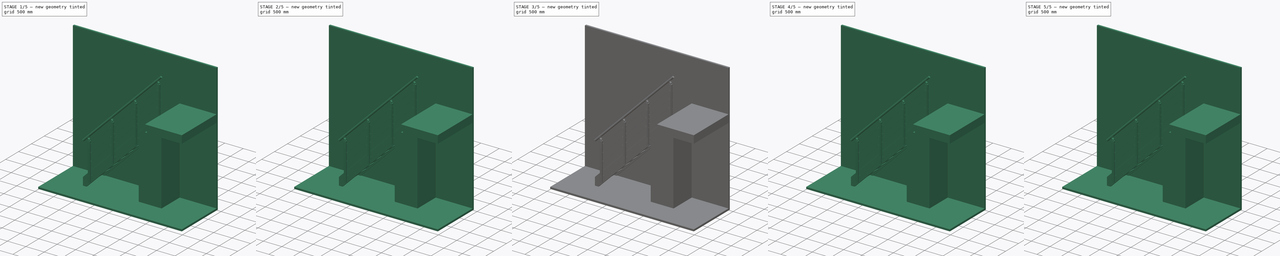
[diagram: build sequence overview — one tinted view per stage of 5, left to right]
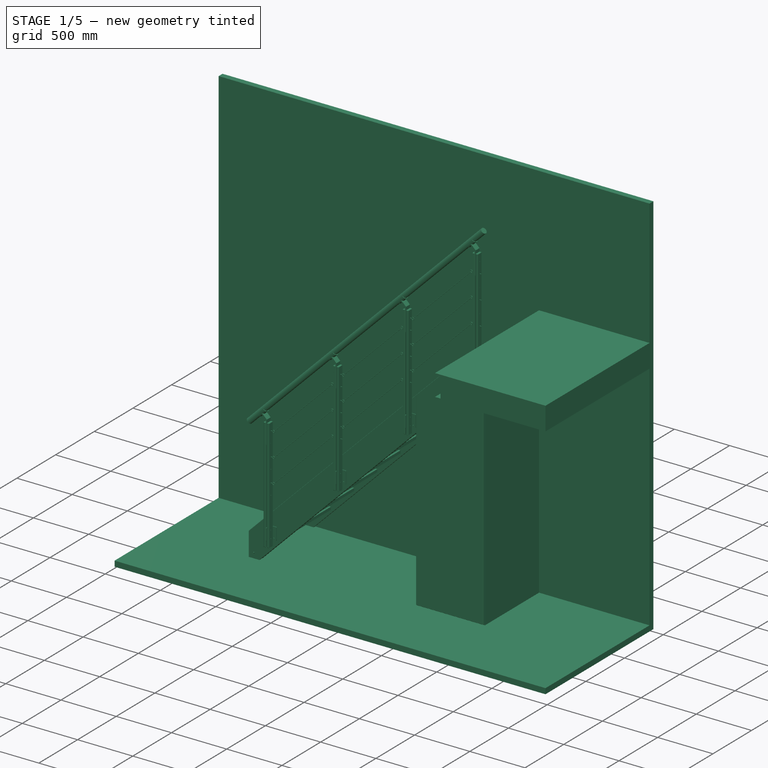
[diagram: stage 1 of 5 — iso view after this stage's code; geometry added in this stage tinted green]
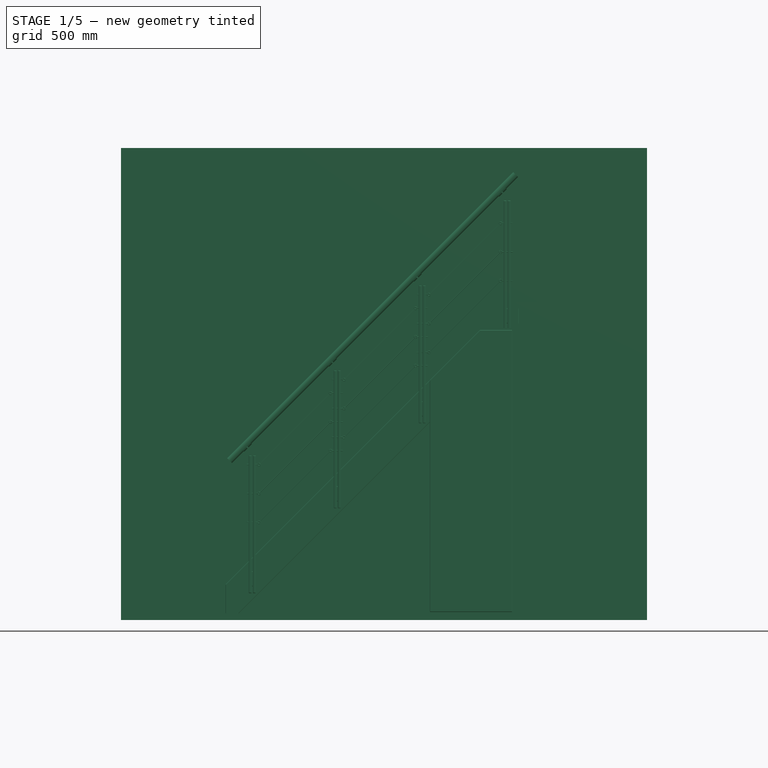
[diagram: stage 1 of 5 — front view after this stage's code; geometry added in this stage tinted green]
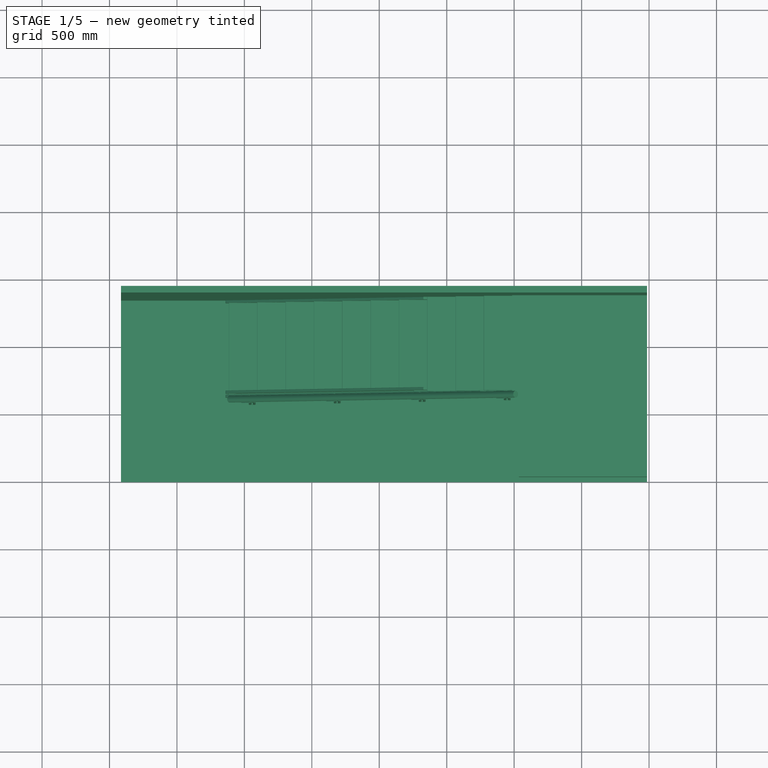
[diagram: stage 1 of 5 — top view after this stage's code; geometry added in this stage tinted green]
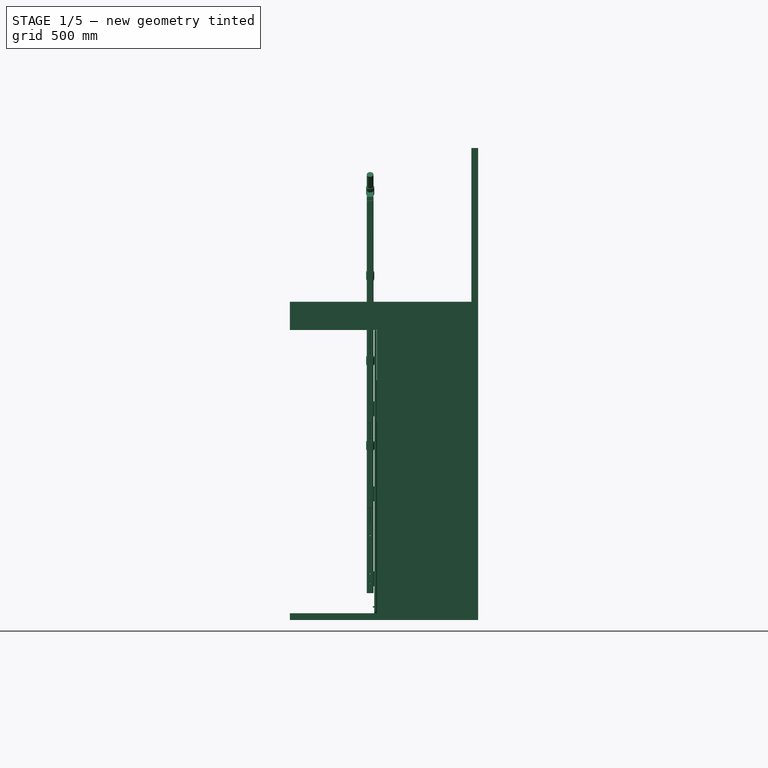
[diagram: stage 1 of 5 — right view after this stage's code; geometry added in this stage tinted green]
FCSTD DOCUMENT  (FreeCAD 0.17R10885 (Git))
Label: assembled_stair
License: All rights reserved
LicenseURL: http://en.wikipedia.org/wiki/All_rights_reserved
objects: Part::Feature×24, TechDraw::DrawViewDimension×23, Part::FeaturePython×16, Part::Part2DObjectPython×15, Part::Extrusion×5, Part::Cut×5, Part::Compound×4, Part::Chamfer×3, Part::Box×3, TechDraw::DrawViewPart×3, Part::Mirroring×2, App::Part×2, Part::Cylinder×2, TechDraw::DrawViewDraft×2, Part::MultiFuse×1, PartDesign::ShapeBinder×1, Sketcher::SketchObject×1, PartDesign::Pocket×1, PartDesign::Body×1, TechDraw::DrawSVGTemplate×1, +3 more types
note: 85 computed .brp shape members not serialized (recipe doc carries the construction recipe); baked Part::Feature solids carry a one-line shape summary decoded from their .brp

FEATURE [Part::Feature] Array_cs
  shape: bbox 2120 x 3e-07 x 1915 mm, 0 faces, 0 solids (baked)
FEATURE [Part::Feature] ShapeGroup001_cs001
  shape: bbox 270.8 x 50 x 1e-05 mm, 0 faces, 0 solids (baked)
FEATURE [Part::Feature] Scale_cs001
  shape: bbox 270.8 x 20 x 1e-05 mm, 0 faces, 0 solids (baked)
FEATURE [Part::Feature] Array_cs001
  shape: bbox 230 x 650 x 3e-07 mm, 0 faces, 0 solids (baked)
FEATURE [Part::FeaturePython] fridge_box_01  # a2plus imported part (geometry in sourceFile) (typed FeaturePython)
  fixedPosition = false
  sourceFile = A712_fridge_box.fcstd
  timeLastImport = 1.4926e+09
  updateColors = true
FEATURE [Part::FeaturePython] beam_003  # a2plus imported part (geometry in sourceFile) (typed FeaturePython)
  Placement = pos=(0.000171726,-325,197.5) rot=(1,0,0;1.5708rad)
  fixedPosition = false
  sourceFile = beam.fcstd
  timeLastImport = 1.49254e+09
  updateColors = true
FEATURE [Part::Chamfer] Chamfer004  label="beam_chm002"
  Base = -> beam_003
  Edges = 7 edges r=2: [Edge1,Edge3,Edge4,Edge9,Edge10,Edge14,Edge15]
FEATURE [Part::Feature] Union
  shape: bbox 80 x 2e-07 x 20 mm, 1 faces, 0 solids (baked)
FEATURE [Part::Extrusion] Extrude007
  Base = -> Union
  Dir = (0,1,0)
  DirMode = 2
  FaceMakerClass = Part::FaceMakerBullseye
  LengthFwd = -20
  LengthRev = 0
  Solid = false
  Symmetric = false
FEATURE [Part::Cylinder] Cylinder002
  Angle = 360
  AttacherType = Attacher::AttachEngine3D
  Height = 60
  Placement = pos=(-91.2719,-325,48) rot=(1,0,0;1.5708rad)
  Radius = 5
FEATURE [TechDraw::DrawSVGTemplate] Template
  Height = 841
  Orientation = 0
  Width = 594
FEATURE [Part::Feature] Box005  label="Floor001"
  Placement = pos=(-915,-1000,-50) rot=(0,0,1;0rad)
  shape: bbox 3900 x 1345 x 50 mm, 6 faces (baked)
FEATURE [Part::Feature] Box003001  label="Wall001"
  Placement = pos=(-915,345,-50) rot=(0,0,1;0rad)
  shape: bbox 3900 x 50 x 3500 mm, 6 faces (baked)
FEATURE [Part::Feature] Body001  label="Slab001"
  shape: bbox 1000 x 1345 x 210 mm, 10 faces (baked)
FEATURE [Part::Feature] Array004  label="Step_array001"
  Placement = pos=(0,0,197.5) rot=(0,0,1;0rad)
  shape: bbox 1490 x 650 x 1335 mm, 364 faces, 21 solids (baked)
FEATURE [Part::Feature] Cut003001  label="wall_beam001"
  shape: bbox 1515 x 20 x 1680 mm, 33 faces (baked)
FEATURE [Part::Feature] Array001001  label="Railing_array001"
  Placement = pos=(0,0,4.1e-11) rot=(0,0,1;0rad)
  shape: bbox 774.5 x 60 x 1756 mm, 260 faces, 20 solids (baked)
FEATURE [Part::Feature] railing_last_element_01001  label="railing_last_element_002"
  Placement = pos=(1948.5,-405,2060) rot=(0,0,1;0rad)
  shape: bbox 136.8 x 60 x 1051 mm, 105 faces, 7 solids (baked)
FEATURE [Part::Feature] beam_plate_01001  label="beam_plate_002"
  Placement = pos=(1375,-354,1516) rot=(0,0,1;1.5708rad)
  shape: bbox 120 x 100 x 90 mm, 25 faces (baked)
FEATURE [Part::Feature] Extrude006001  label="handrail001"
  Placement = pos=(-106.972,-5,-87.3784) rot=(0,0,1;0rad)
  shape: bbox 2157 x 50 x 2157 mm, 3 faces (baked)
FEATURE [Part::Feature] railing_last_plate_01001  label="railing_last_plate_002"
  Placement = pos=(2035,-375,2205) rot=(0,0,1;1.5708rad)
  shape: bbox 150 x 100 x 111 mm, 25 faces (baked)
FEATURE [Part::Feature] railing_first_element_01001  label="railing_first_element_002"
  Placement = pos=(58.5,-405,170) rot=(0,0,1;0rad)
  shape: bbox 144.5 x 60 x 1126 mm, 121 faces, 7 solids (baked)
FEATURE [Part::Feature] Array003001  label="ropes001"
  shape: bbox 1793 x 4 x 2220 mm, 27 faces, 9 solids (baked)
FEATURE [Part::Feature] beam_ground_plate_01001  label="beam_ground_plate_002"
  Placement = pos=(-91.2719,-354,0) rot=(0.57735,0.57735,0.57735;2.0944rad)
  shape: bbox 60 x 100 x 80 mm, 21 faces (baked)
FEATURE [Part::FeaturePython] Scale  # Draft clone (typed FeaturePython)
  Objects = -> [Chamfer004]
  Placement = pos=(0,-700,0) rot=(0,0,1;0rad)
  Scale = (1,-1,1)
FEATURE [Part::Feature] Cut004001  label="double_beam001"
  shape: bbox 1516 x 50 x 1730 mm, 73 faces, 2 solids (baked)
FEATURE [Part::Chamfer] Chamfer  label="fridge_box_chamfered"
  Base = -> fridge_box_01
  Edges = 21 edges r=2: [Edge74,Edge76,Edge86,Edge88,Edge97,Edge98,Edge99,Edge100,Edge101,Edge102,Edge103,Edge104,Edge105,Edge106,Edge107,Edge108,Edge109,Edge110,Edge111,Edge113,Edge116]
FEATURE [Part::Compound] Compound003  label="all"
  Links = -> [Box005,Body001,Box003001,Array004,Cut003001,Array001001,railing_last_element_01001,beam_plate_01001,Extrude006001,railing_last_plate_01001,railing_first_element_01001,Array003001,beam_ground_plate_01001,Cut004001,Chamfer]
FEATURE [TechDraw::DrawViewPart] View  label="Plan"
  ArcCenterMarks = true
  CenterScale = 2.5
  Direction = (0,0,1)
  HardHidden = true
  HiddenWidth = 0.05
  HorizCenterLine = false
  IsoCount = 0
  IsoHidden = false
  IsoVisible = false
  IsoWidth = 0.3
  KeepLabel = false
  LineWidth = 0.13
  Rotation = 0
  Scale = 0.1
  ScaleType = 2
  SeamHidden = false
  SeamVisible = false
  ShowSectionLine = false
  SmoothHidden = false
  SmoothVisible = false
  Source = -> Compound003
  VertCenterLine = false
  X = 210
  Y = 400
FEATURE [TechDraw::DrawViewSection] Section
  ArcCenterMarks = true
  BaseView = -> View
  CenterScale = 2.5
  Direction = (0,-1,0)
  FileHatchPattern = <userpath>/softwares/qcad-pro/patterns/metric/ansi31.pat
  HardHidden = false
  HatchScale = 0.2
  HiddenWidth = 0.1
  HorizCenterLine = false
  IsoCount = 0
  IsoHidden = false
  IsoVisible = false
  IsoWidth = 0.1
  KeepLabel = false
  LineWidth = 0.13
  NameGeomPattern = ANSI31
  Rotation = 0
  Scale = 0.1
  ScaleType = 2
  SeamHidden = false
  SeamVisible = false
  SectionDirection = 2
  SectionNormal = (0,-1,0)
  SectionOrigin = (1035,0,-25)
  SectionSymbol = A
  ShowSectionLine = true
  SmoothHidden = false
  SmoothVisible = false
  Source = -> Compound003
  VertCenterLine = false
  X = 210
  Y = 650
  expr: LineWidth = View.LineWidth
  expr: CenterScale = View.CenterScale
  expr: X = View.X
FEATURE [TechDraw::DrawViewDimension] Dimension
  Caption = sssdf
  Font = Arial
  Fontsize = 3
  FormatSpec = %value%
  KeepLabel = false
  LineWidth = 0.1
  MeasureType = 1
  References2D = -> [Section]
  Rotation = 0
  ScaleType = 0
  Type = 1
  X = 3.04912
  Y = 56.2574
FEATURE [TechDraw::DrawViewDimension] Dimension001
  Caption = sssdf
  Font = Arial
  Fontsize = 3
  FormatSpec = %value%
  KeepLabel = false
  LineWidth = 0.1
  MeasureType = 1
  References2D = -> [Section]
  Rotation = 0
  ScaleType = 0
  Type = 1
  X = -21.1426
  Y = 35.3633
FEATURE [TechDraw::DrawViewDimension] Dimension002
  Caption = sssdf
  Font = Arial
  Fontsize = 3
  FormatSpec = %value%
  KeepLabel = false
  LineWidth = 0.1
  MeasureType = 1
  References2D = -> [Section]
  Rotation = 0
  ScaleType = 0
  Type = 2
  X = -40.9826
  Y = 55.4836
FEATURE [TechDraw::DrawViewDimension] Dimension007
  Font = Arial
  Fontsize = 3
  FormatSpec = %value%
  KeepLabel = false
  LineWidth = 0.1
  MeasureType = 1
  References2D = -> [Section]
  Rotation = 0
  ScaleType = 0
  Type = 2
  X = 42
  Y = 90.0904
FEATURE [TechDraw::DrawViewDimension] Dimension008
  Font = Arial
  Fontsize = 3
  FormatSpec = %value%
  KeepLabel = false
  LineWidth = 0.1
  MeasureType = 1
  References2D = -> [Section]
  Rotation = 0
  ScaleType = 0
  Type = 1
  X = 62.6918
  Y = 158.73
FEATURE [TechDraw::DrawViewDimension] Dimension009
  Font = Arial
  Fontsize = 3
  FormatSpec = %value%
  KeepLabel = false
  LineWidth = 0.1
  MeasureType = 1
  References2D = -> [Section]
  Rotation = 0
  ScaleType = 0
  Type = 2
  X = 114.64
  Y = 62.8581
FEATURE [TechDraw::DrawViewDimension] Dimension010
  Font = Arial
  Fontsize = 3
  FormatSpec = %value%
  KeepLabel = false
  LineWidth = 0.1
  MeasureType = 1
  References2D = -> [Section]
  Rotation = 0
  ScaleType = 0
  Type = 2
  X = 103.924
  Y = 63.3452
FEATURE [TechDraw::DrawViewDimension] Dimension011
  Font = Arial
  Fontsize = 3
  FormatSpec = %value%
  KeepLabel = false
  LineWidth = 0.1
  MeasureType = 1
  References2D = -> [Section]
  Rotation = 0
  ScaleType = 0
  Type = 1
  X = -48.6595
  Y = -7.04282
FEATURE [TechDraw::DrawViewDimension] Dimension012
  Font = Arial
  Fontsize = 3
  FormatSpec = %value%
  KeepLabel = false
  LineWidth = 0.1
  MeasureType = 1
  References2D = -> [Section]
  Rotation = 0
  ScaleType = 0
  Type = 2
  X = -129.972
  Y = 88.9956
FEATURE [TechDraw::DrawViewDimension] Dimension013
  Font = Arial
  Fontsize = 3
  FormatSpec = %value%
  KeepLabel = false
  LineWidth = 0.1
  MeasureType = 1
  References2D = -> [Section]
  Rotation = 0
  ScaleType = 0
  Type = 2
  X = 42.8341
  Y = -19.0443
FEATURE [TechDraw::DrawViewDimension] Dimension014
  Font = Arial
  Fontsize = 3
  FormatSpec = %value%
  KeepLabel = false
  LineWidth = 0.1
  MeasureType = 1
  References2D = -> [Section]
  Rotation = 0
  ScaleType = 0
  Type = 1
  X = 69.8301
  Y = -7.09209
FEATURE [TechDraw::DrawViewAnnotation] Annotation
  Font = Arial
  KeepLabel = false
  LineSpace = 120
  MaxWidth = 70
  Rotation = 0
  ScaleType = 0
  Text = Per le pedate ed i ripiani orizzontali è stato considerato uno spessore di 25mm. | Per i pannelli verticali - pareti del box frigo travi inclinate montanti del parapetto - si è considerato uno spessore di 20mm (eventualmente raddoppiato dall'accoppiamento degli elementi)
  TextSize = 3
  TextStyle = 0
  X = 160.77
  Y = 537.272
FEATURE [TechDraw::DrawViewDimension] Dimension015
  Font = Arial
  Fontsize = 3
  FormatSpec = %value%
  KeepLabel = false
  LineWidth = 0.1
  MeasureType = 1
  References2D = -> [View]
  Rotation = 0
  ScaleType = 0
  Type = 2
  X = -125.269
  Y = -34.1305
FEATURE [TechDraw::DrawViewDimension] Dimension016
  Font = Arial
  Fontsize = 3
  FormatSpec = %value%
  KeepLabel = false
  LineWidth = 0.1
  MeasureType = 1
  References2D = -> [View]
  Rotation = 0
  ScaleType = 0
  Type = 2
  X = -132.853
  Y = -33.8251
FEATURE [TechDraw::DrawViewDimension] Dimension017
  Font = Arial
  Fontsize = 3
  FormatSpec = %value%
  KeepLabel = false
  LineWidth = 0.1
  MeasureType = 1
  References2D = -> [View]
  Rotation = 0
  ScaleType = 0
  Type = 1
  X = -82.3104
  Y = -51.8191
FEATURE [TechDraw::DrawViewDimension] Dimension018
  Font = Arial
  Fontsize = 3
  FormatSpec = %value%
  KeepLabel = false
  LineWidth = 0.1
  MeasureType = 1
  References2D = -> [View]
  Rotation = 0
  ScaleType = 0
  Type = 2
  X = 62.0095
  Y = -31.8256
FEATURE [TechDraw::DrawViewDimension] Dimension019
  Font = Arial
  Fontsize = 3
  FormatSpec = %value%
  KeepLabel = false
  LineWidth = 0.1
  MeasureType = 1
  Rotation = 0
  ScaleType = 0
  Type = 1
  X = -83.1094
  Y = -46.3148
FEATURE [TechDraw::DrawViewPart] View001  label="Side"
  ArcCenterMarks = true
  CenterScale = 2.5
  Direction = (-1,0,0)
  HardHidden = true
  HiddenWidth = 0.05
  HorizCenterLine = false
  IsoCount = 0
  IsoHidden = false
  IsoVisible = false
  IsoWidth = 0.3
  KeepLabel = false
  LineWidth = 0.13
  Rotation = 0
  Scale = 0.1
  ScaleType = 2
  SeamHidden = false
  SeamVisible = false
  ShowSectionLine = true
  SmoothHidden = false
  SmoothVisible = false
  Source = -> Compound003
  VertCenterLine = false
  X = 490.406
  Y = 650
  expr: LineWidth = View.LineWidth
  expr: CenterScale = View.CenterScale
  expr: Y = Section.Y
FEATURE [TechDraw::DrawViewPart] View002  label="Front"
  ArcCenterMarks = true
  CenterScale = 2.5
  Direction = (0,-1,0)
  HardHidden = true
  HiddenWidth = 0.05
  HorizCenterLine = false
  IsoCount = 0
  IsoHidden = false
  IsoVisible = false
  IsoWidth = 0.3
  KeepLabel = false
  LineWidth = 0.13
  Rotation = 0
  Scale = 0.1
  ScaleType = 2
  SeamHidden = false
  SeamVisible = false
  ShowSectionLine = true
  SmoothHidden = false
  SmoothVisible = false
  Source = -> Compound003
  VertCenterLine = false
  X = 210
  Y = 195
  expr: LineWidth = View.LineWidth
  expr: CenterScale = View.CenterScale
  expr: X = View.X
FEATURE [TechDraw::DrawViewDimension] Dimension020
  Font = Arial
  Fontsize = 3
  FormatSpec = %value%
  KeepLabel = false
  LineWidth = 0.1
  MeasureType = 1
  References2D = -> [View001]
  Rotation = 0
  ScaleType = 0
  Type = 2
  X = -53.4382
  Y = -8.68372
FEATURE [TechDraw::DrawViewDimension] Dimension021
  Font = Arial
  Fontsize = 3
  FormatSpec = %value%
  KeepLabel = false
  LineWidth = 0.1
  MeasureType = 1
  References2D = -> [View001]
  Rotation = 0
  ScaleType = 0
  Type = 2
  X = -41.6373
  Y = -8.46106
FEATURE [TechDraw::DrawViewDimension] Dimension022
  Font = Arial
  Fontsize = 3
  FormatSpec = %value%
  KeepLabel = false
  LineWidth = 0.1
  MeasureType = 1
  References2D = -> [View002]
  Rotation = 0
  ScaleType = 0
  Type = 2
  X = -130.027
  Y = 98.1062
FEATURE [TechDraw::DrawViewDimension] Dimension023
  Font = Arial
  Fontsize = 3
  FormatSpec = %value%
  KeepLabel = false
  LineWidth = 0.1
  MeasureType = 1
  References2D = -> [View002]
  Rotation = 0
  ScaleType = 0
  Type = 2
  X = -25.8937
  Y = 25.4859
FEATURE [TechDraw::DrawViewDimension] Dimension024
  Font = Arial
  Fontsize = 3
  FormatSpec = %value%
  KeepLabel = false
  LineWidth = 0.1
  MeasureType = 1
  References2D = -> [View002]
  Rotation = 0
  ScaleType = 0
  Type = 0
  X = -37.2359
  Y = -42.7935
FEATURE [TechDraw::DrawViewDimension] Dimension025
  Font = Arial
  Fontsize = 3
  FormatSpec = %value%
  KeepLabel = false
  LineWidth = 0.1
  MeasureType = 1
  References2D = -> [View]
  Rotation = 0
  ScaleType = 0
  Type = 1
  X = -81.9686
  Y = -44.8929
FEATURE [TechDraw::DrawViewDimension] Dimension026
  Font = Arial
  Fontsize = 3
  FormatSpec = %value%
  KeepLabel = false
  LineWidth = 0.1
  MeasureType = 1
  References2D = -> [View002]
  Rotation = 0
  ScaleType = 0
  Type = 2
  X = 10.8064
  Y = -32.8053
FEATURE [Part::Feature] Compound003_cs
  shape: bbox 3900 x 3e-07 x 2360 mm, 0 faces, 0 solids (baked)
FEATURE [TechDraw::DrawViewDraft] DraftView
  Direction = (0,-1,0)
  FontSize = 12
  KeepLabel = false
  LineSpacing = 1
  LineStyle = Solid
  LineWidth = 0.25
  Rotation = -90
  Scale = 0.1
  ScaleType = 2
  Source = -> Compound003_cs
  Symbol = <blob: 5544 chars omitted>
  X = 91.3
  Y = 788.398
FEATURE [Part::Part2DObjectPython] Rectangle002  # Draft 2D object (typed FeaturePython)
  ChamferSize = 0
  Columns = 1
  FilletRadius = 0
  Height = 100
  Length = 4000
  MakeFace = true
  Placement = pos=(-915,-1050,0) rot=(0,0,1;0rad)
  Rows = 1
FEATURE [TechDraw::DrawViewDraft] DraftView001
  Direction = (0,0,1)
  FontSize = 12
  KeepLabel = false
  LineSpacing = 1
  LineStyle = Solid
  LineWidth = 0.35
  Rotation = 0
  Scale = 0.1
  ScaleType = 2
  Source = -> Rectangle002
  Symbol = <svg\n xmlns="http://www.w3.org/2000/svg" version="1.1"\n xmlns:freecad="http://www.freecadweb.org/wiki/index.php?title=Svg_Namespace">\n<path id="Rectangle002_f0000"  d="M -915.0 1050.00015259 L 3085.0 1050.00015259 L 3085.0 950.000152588 L -915.0 950.000152588 L -915.0 1050.00015259 Z " stroke="#FFFFFF" stroke-width="3.5 px" style="stroke-width:3.5;stroke-miterlimit:4;stroke-dasharray:none;fill:#ffffff;fill-rule: evenodd "/>\n\n</svg>
  X = 11.8313
  Y = 378.036
FEATURE [TechDraw::DrawPage] Page
  ProjectionType = 0
  Template = -> Template
  Views = -> [View,Section,Dimension,Dimension001,Dimension002,Dimension007,Dimension008,Dimension009,Dimension010,Dimension011,Dimension012,Dimension013,Dimension014,Annotation,Dimension015,Dimension016,Dimension017,Dimension018,Dimension019,View001,View002,Dimension020,Dimension021,Dimension022,Dimension023,Dimension024,Dimension025,Dimension026,DraftView,DraftView001]
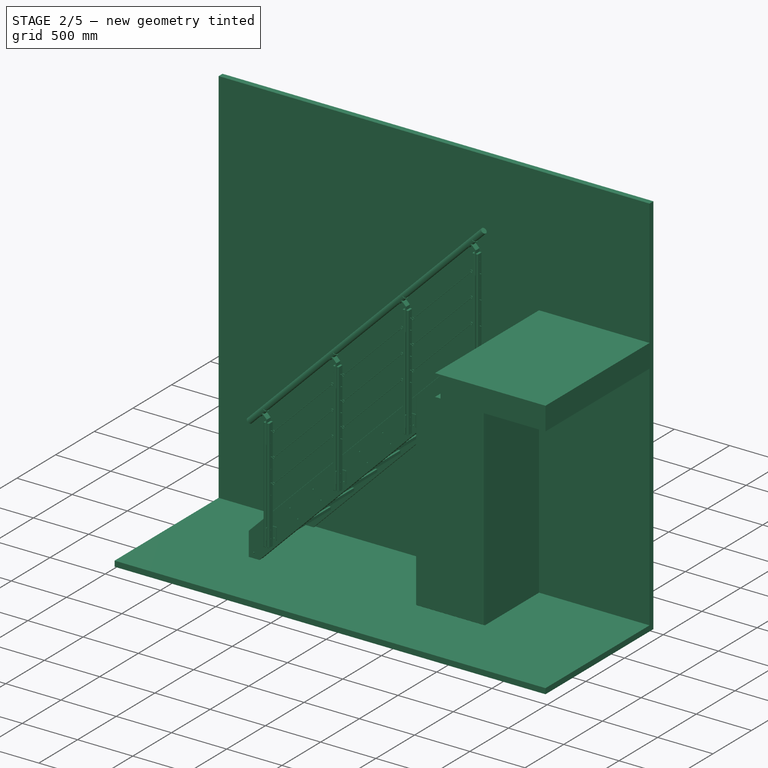
[diagram: stage 2 of 5 — iso view after this stage's code; geometry added in this stage tinted green]
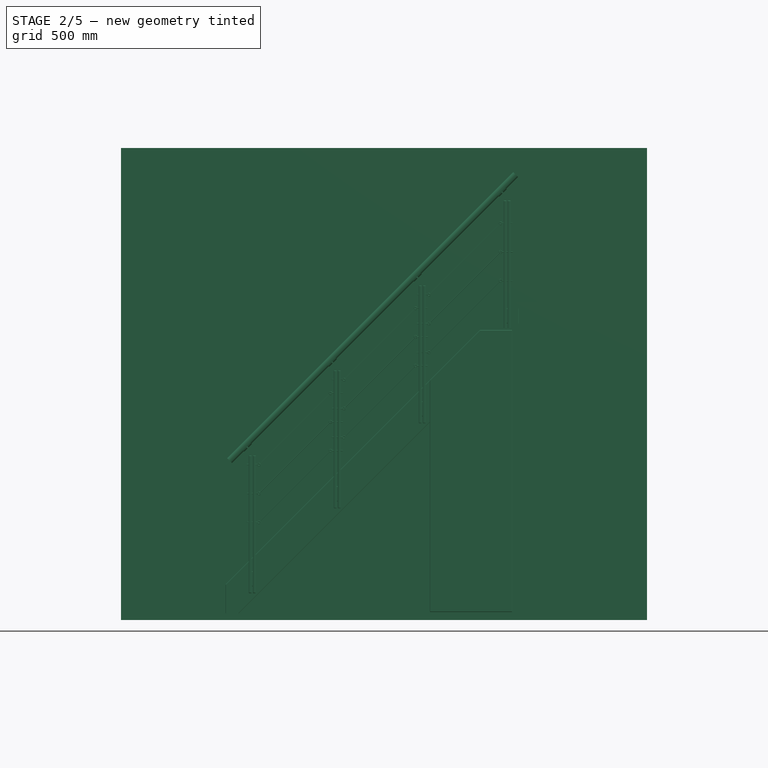
[diagram: stage 2 of 5 — front view after this stage's code; geometry added in this stage tinted green]
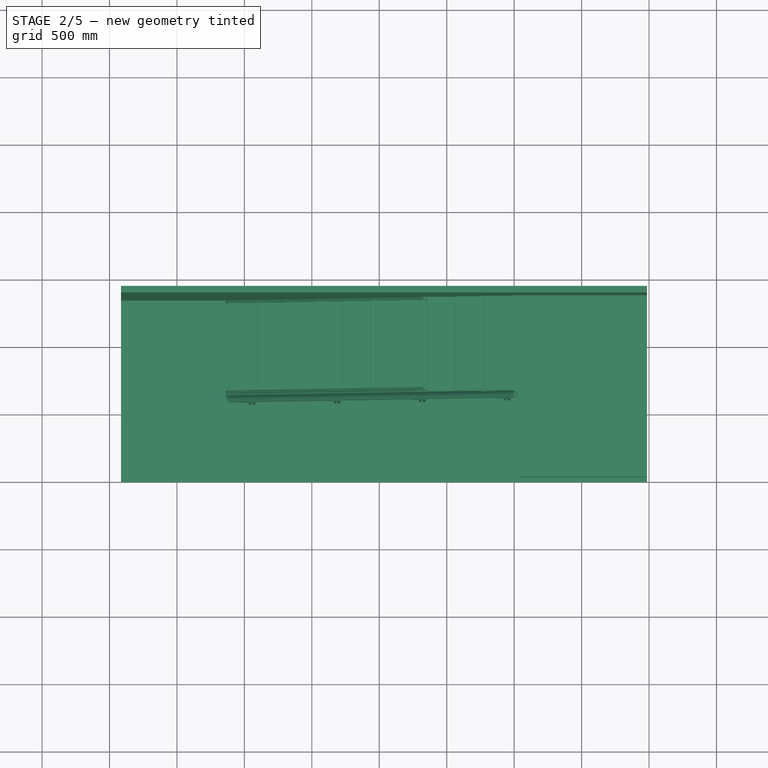
[diagram: stage 2 of 5 — top view after this stage's code; geometry added in this stage tinted green]
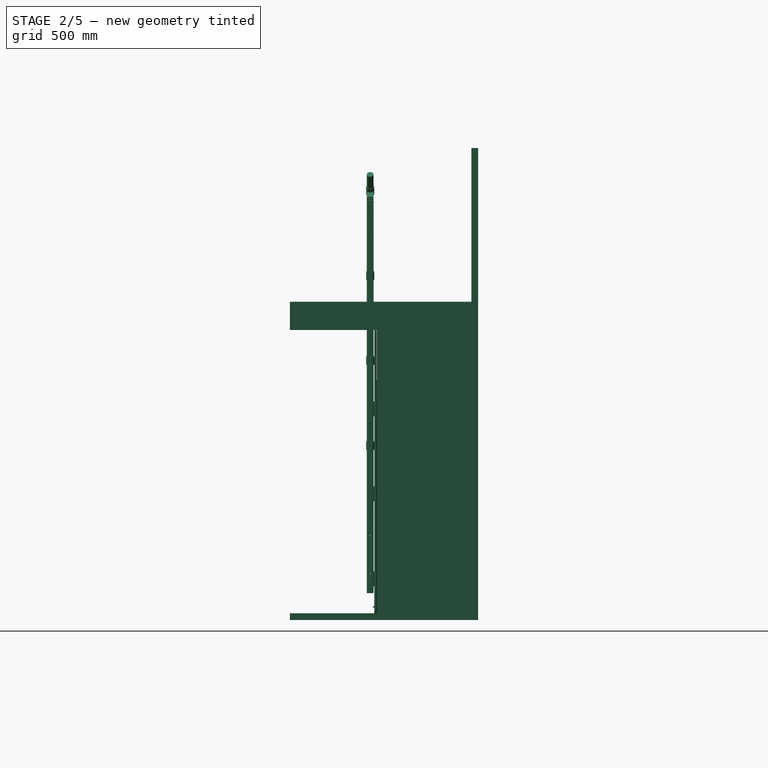
[diagram: stage 2 of 5 — right view after this stage's code; geometry added in this stage tinted green]
FEATURE [Part::Part2DObjectPython] Circle  # Draft 2D object (typed FeaturePython)
  FirstAngle = 0
  LastAngle = 0
  MakeFace = true
  Placement = pos=(1354,-380,1480.5) rot=(1,0,0;1.5708rad)
  Radius = 5
FEATURE [Part::Extrusion] Extrude
  Base = -> Circle
  Dir = (0,-1,0)
  DirMode = 2
  FaceMakerClass = Part::FaceMakerBullseye
  LengthFwd = -800
  LengthRev = 0
  Solid = false
  Symmetric = false
FEATURE [Part::FeaturePython] Array002  # Draft array (typed FeaturePython)
  Angle = 360
  ArrayType = 0
  Axis = (0,0,1)
  Base = -> Extrude
  Center = (0,0,0)
  Fuse = false
  IntervalAxis = (0,0,0)
  IntervalX = (-210,0,-210)
  IntervalY = (0,1,0)
  IntervalZ = (-71,0,71)
  NumberPolar = 1
  NumberX = 7
  NumberY = 1
  NumberZ = 2
  expr: IntervalX.z = Array002.IntervalX[0]
FEATURE [Part::Part2DObjectPython] Line  # Draft 2D object (typed FeaturePython)
  ChamferSize = 0
  Closed = false
  End = (784.37,-375,828.914)
  FilletRadius = 0
  Length = 216.312
  MakeFace = true
  Points = (2) [(631.414,-375,981.87),(784.37,-375,828.914)]
  Start = (631.414,-375,981.87)
  Subdivisions = 0
FEATURE [Part::Feature] Compound001_cs
  shape: bbox 1490 x 3e-07 x 1728 mm, 0 faces, 0 solids (baked)
FEATURE [Part::Part2DObjectPython] Line001  # Draft 2D object (typed FeaturePython)
  ChamferSize = 0
  Closed = false
  End = (42.1987,-365,83.9141)
  FilletRadius = 0
  Length = 220.312
  MakeFace = true
  Points = (2) [(-113.586,-365,239.698),(42.1987,-365,83.9141)]
  Start = (-113.586,-365,239.698)
  Subdivisions = 0
FEATURE [Part::Part2DObjectPython] Line002  # Draft 2D object (typed FeaturePython)
  ChamferSize = 0
  Closed = false
  End = (786.492,-365,828.207)
  FilletRadius = 0
  Length = 220.312
  MakeFace = true
  Points = (2) [(630.707,-365,983.991),(786.492,-365,828.207)]
  Start = (630.707,-365,983.991)
  Subdivisions = 0
FEATURE [Part::Part2DObjectPython] Line003  # Draft 2D object (typed FeaturePython)
  ChamferSize = 0
  Closed = false
  End = (708.599,-365,906.099)
  FilletRadius = 0
  Length = 1052.59
  MakeFace = true
  Points = (2) [(-35.6935,-365,161.806),(708.599,-365,906.099)]
  Start = (-35.6935,-365,161.806)
  Subdivisions = 0
FEATURE [Part::FeaturePython] Component  label="beam_chm003"  # WARN: FeaturePython — macro-defined, semantics opaque (R4)
  CloneOf = -> Chamfer004
  HorizontalArea = 0
  MoveWithHost = false
  PerimeterLength = 0
  Role = 0
  VerticalArea = 0
FEATURE [Part::Part2DObjectPython] Rectangle001  # Draft 2D object (typed FeaturePython)
  ChamferSize = 0
  Columns = 1
  FilletRadius = 0
  Height = 72.0906
  Length = 94.7193
  MakeFace = true
  Placement = pos=(1292.89,-325,1752.09) rot=(-1,0,0;1.5708rad)
  Rows = 1
FEATURE [Part::Feature] Fusion002
  shape: bbox 94.72 x 2e-07 x 291.7 mm, 2 faces, 0 solids (baked)
FEATURE [Part::Part2DObjectPython] Rectangle  # Draft 2D object (typed FeaturePython)
  ChamferSize = 0
  Columns = 1
  FilletRadius = 0
  Height = 25
  Length = 32.6106
  MakeFace = true
  Placement = pos=(1355,-325,1680) rot=(-1,0,0;1.5708rad)
  Rows = 1
FEATURE [Part::Part2DObjectPython] Fusion003  # Draft 2D object (typed FeaturePython)
  Base = -> Rectangle
  ChamferSize = 0
  Closed = false
  End = (1355,-325,1680)
  FilletRadius = 0
  Length = 0
  MakeFace = true
  Points = (7) [(1292.89,-325,1680),(1292.89,-325,1752.09),(1387.61,-325,1752.09),(1387.61,-325,1680),(1387.61,-325,1655),(1355,-325,1655),(1355,-325,1680)]
  Start = (1292.89,-325,1680)
  Subdivisions = 0
  Tool = -> Rectangle001
FEATURE [Part::Feature] Union003
  Placement = pos=(313.205,0,354.508) rot=(0,0,1;0rad)
  shape: bbox 20 x 2e-07 x 150 mm, 1 faces, 0 solids (baked)
FEATURE [Part::MultiFuse] Fusion
  Shapes = -> [Union003,Fusion003]
FEATURE [Part::Extrusion] Extrude003
  Base = -> Fusion
  Dir = (0,1,0)
  DirMode = 2
  FaceMakerClass = Part::FaceMakerBullseye
  LengthFwd = -25
  LengthRev = 0
  Solid = false
  Symmetric = false
FEATURE [Part::Compound] Compound002
  Links = -> [Extrude007,Extrude003]
FEATURE [Part::Cut] Cut001
  Base = -> Component
  Tool = -> Compound002
FEATURE [Part::Compound] Compound001
  Links = -> [Cut001,Scale]
FEATURE [Part::Cut] Cut  label="drilled_double_beam"
  Base = -> Compound001
  Tool = -> Array002
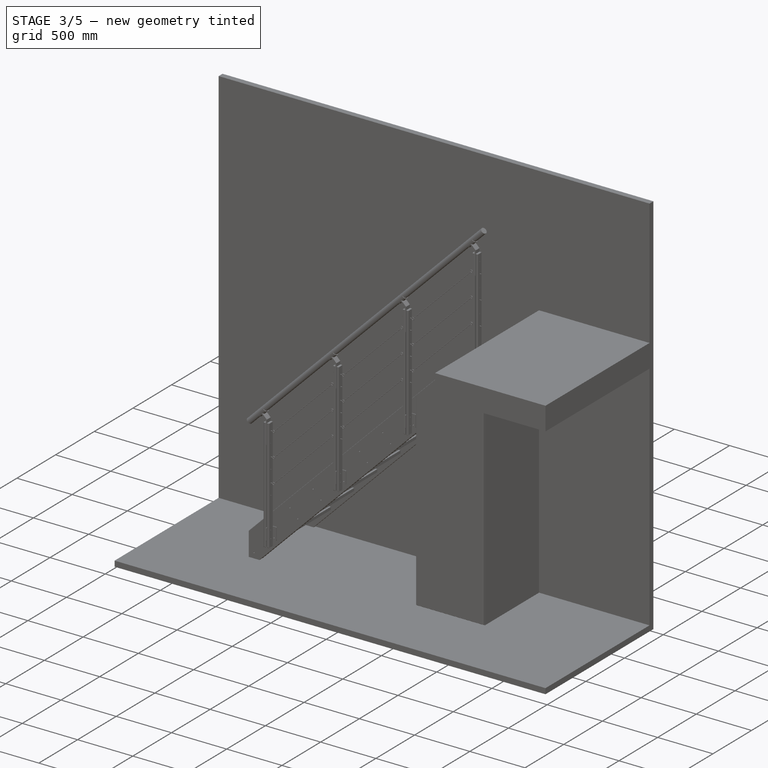
[diagram: stage 3 of 5 — iso view after this stage's code; geometry added in this stage tinted green]
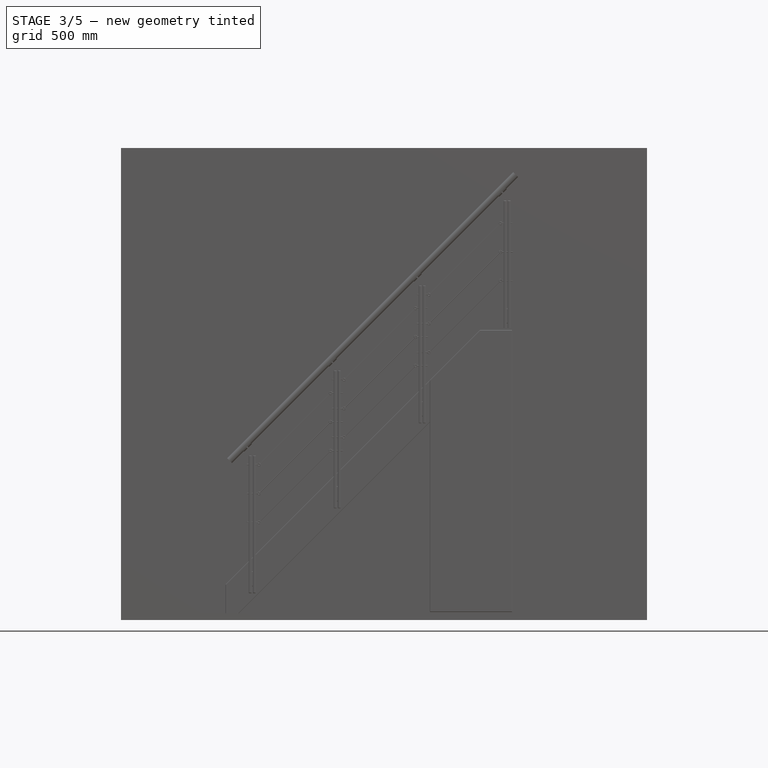
[diagram: stage 3 of 5 — front view after this stage's code; geometry added in this stage tinted green]
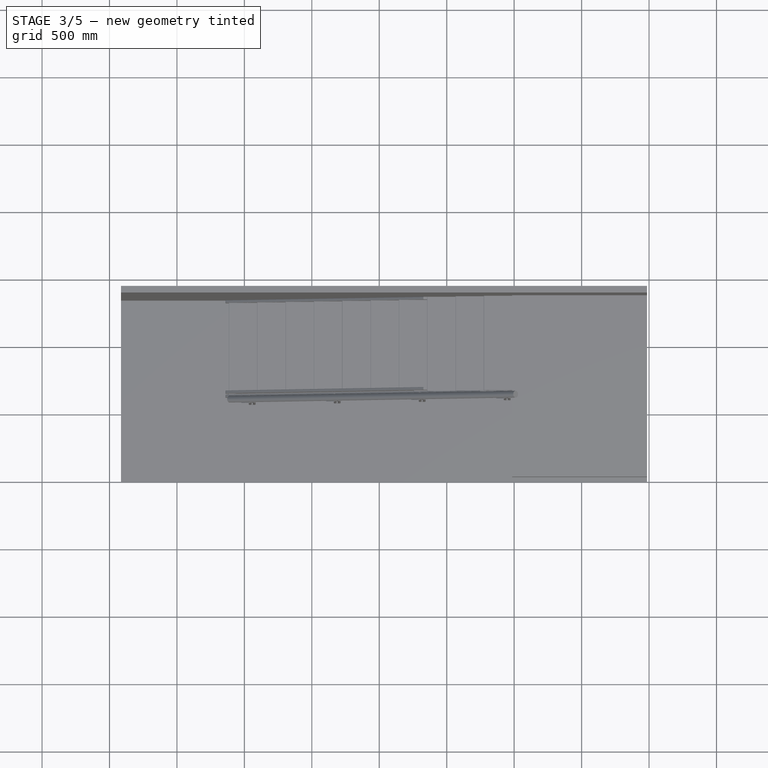
[diagram: stage 3 of 5 — top view after this stage's code; geometry added in this stage tinted green]
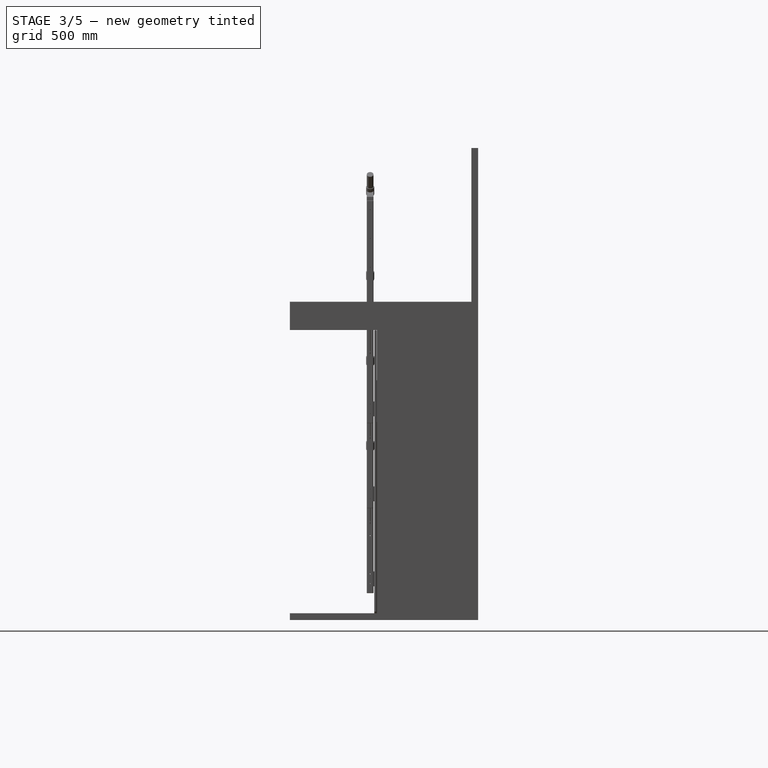
[diagram: stage 3 of 5 — right view after this stage's code; geometry added in this stage tinted green]
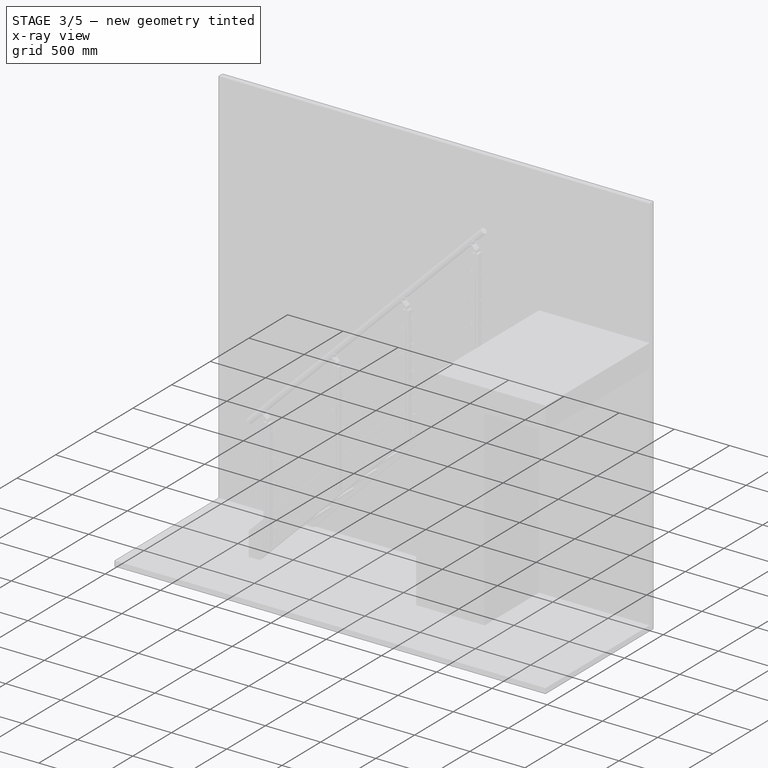
[diagram: stage 3 of 5 — x-ray composite at the iso view; earlier geometry ghosted, this stage's added geometry solid]
FEATURE [Part::Box] Box002  label="Slab_box"
  AttacherType = Attacher::AttachEngine3D
  Height = 210
  Length = 1000
  Placement = pos=(1985,-1000,2100) rot=(0,0,1;0rad)
  Width = 1345
FEATURE [PartDesign::Body] Body  label="Slab"
  BaseFeature = -> Box002
  Group = -> [ReferenceBox002,Sketch,Pocket]
  Origin = -> BodyOrigin
  Tip = -> Pocket
FEATURE [App::Part] Part001  label="Room"
  Group = -> [Box,Box003,Body]
  License = CC BY 3.0
  LicenseURL = http://creativecommons.org/licenses/by/3.0/
  Origin = -> Part001Origin
FEATURE [Part::Part2DObjectPython] Circle001  # Draft 2D object (typed FeaturePython)
  FirstAngle = 0
  LastAngle = 0
  MakeFace = true
  Placement = pos=(-3.22,-400,1219.75) rot=(0.92388,0,-0.382683;3.14159rad)
  Radius = 25
FEATURE [Part::Extrusion] Extrude006  label="handrail"
  Base = -> Circle001
  Dir = (-0.707106,0,-0.707108)
  DirMode = 2
  FaceMakerClass = Part::FaceMakerBullseye
  LengthFwd = -3000
  LengthRev = 0
  Placement = pos=(-106.972,-5,-87.3784) rot=(0,0,1;0rad)
  Solid = false
  Symmetric = false
FEATURE [Part::FeaturePython] railing_last_element_01  # a2plus imported part (geometry in sourceFile) (typed FeaturePython)
  Placement = pos=(1948.5,-405,2060) rot=(0,0,1;0rad)
  fixedPosition = false
  sourceFile = railing_last_element.fcstd
  timeLastImport = 1.49258e+09
  updateColors = true
FEATURE [Part::FeaturePython] railing_last_plate_01  # a2plus imported part (geometry in sourceFile) (typed FeaturePython)
  Placement = pos=(2035,-375,2205) rot=(0,0,1;1.5708rad)
  fixedPosition = false
  sourceFile = railing_last_plate.fcstd
  timeLastImport = 1.49253e+09
  updateColors = true
FEATURE [Part::Feature] Pocket_cs
  shape: bbox 950 x 1345 x 3e-07 mm, 0 faces, 0 solids (baked)
FEATURE [Part::Part2DObjectPython] Line004  # Draft 2D object (typed FeaturePython)
  ChamferSize = 0
  Closed = false
  End = (1923.75,-405,3166.32)
  FilletRadius = 0
  Length = 2752.86
  MakeFace = true
  Points = (2) [(-22.8173,-405,1219.75),(1923.75,-405,3166.32)]
  Start = (-22.8173,-405,1219.75)
  Subdivisions = 0
FEATURE [Part::FeaturePython] railing_first_element_01  # a2plus imported part (geometry in sourceFile) (typed FeaturePython)
  Placement = pos=(58.5,-405,170) rot=(0,0,1;0rad)
  fixedPosition = false
  sourceFile = railing_first_element.fcstd
  timeLastImport = 1.49258e+09
  updateColors = true
FEATURE [Part::Part2DObjectPython] Line005  label="rope_length"  # Draft 2D object (typed FeaturePython)
  ChamferSize = 0
  Closed = false
  End = (638.5,-405,1205.27)
  FilletRadius = 0
  Length = 749.533
  MakeFace = true
  Points = (2) [(108.5,-405,675.269),(638.5,-405,1205.27)]
  Start = (108.5,-405,675.269)
  Subdivisions = 0
FEATURE [Part::Part2DObjectPython] Line006  label="rope_offset"  # Draft 2D object (typed FeaturePython)
  ChamferSize = 0
  Closed = false
  End = (108.5,-405,888.748)
  FilletRadius = 0
  Length = 213.479
  MakeFace = true
  Placement = pos=(-530,0,-530) rot=(0,0,1;0rad)
  Points = (2) [(638.5,-405,1205.27),(638.5,-405,1418.75)]
  Start = (108.5,-405,675.269)
  Subdivisions = 0
FEATURE [Part::Cylinder] Cylinder
  Angle = 360
  AttacherType = Attacher::AttachEngine3D
  Height = 749.533
  Placement = pos=(108.5,-405,675.269) rot=(0,1,0;0.785398rad)
  Radius = 2
  expr: Height = rope_length.Length
FEATURE [Part::FeaturePython] Array003  label="ropes"  # Draft array (typed FeaturePython)
  Angle = 360
  ArrayType = 0
  Axis = (0,0,1)
  Base = -> Cylinder
  Center = (0,0,0)
  Fuse = false
  IntervalAxis = (0,0,0)
  IntervalX = (630,0,630)
  IntervalY = (0,0,0)
  IntervalZ = (0,0,213.479)
  NumberPolar = 1
  NumberX = 3
  NumberY = 1
  NumberZ = 3
  expr: IntervalZ.z = rope_offset.Length
FEATURE [Part::Part2DObjectPython] Line007  # Draft 2D object (typed FeaturePython)
  ChamferSize = 0
  Closed = false
  End = (-116,-375,10.5)
  FilletRadius = 0
  Length = 890.955
  MakeFace = true
  Placement = pos=(-630,0,-630) rot=(0,0,1;0rad)
  Points = (2) [(1144,-375,1270.5),(514,-375,640.5)]
  Start = (514,-375,640.5)
  Subdivisions = 0
FEATURE [App::Part] Part  label="drawing"
  Group = -> [Array_cs001,Scale_cs001,ShapeGroup001_cs001,Array_cs,Compound001_cs,Line001,Line002,Line003,Line,Fusion002,Pocket_cs,Line004,Line006,Line005,Line007]
  License = CC BY 3.0
  LicenseURL = http://creativecommons.org/licenses/by/3.0/
  Origin = -> PartOrigin
FEATURE [Part::FeaturePython] beam_ground_plate_01  # a2plus imported part (geometry in sourceFile) (typed FeaturePython)
  Placement = pos=(-91.2719,-354,0) rot=(0.57735,0.57735,0.57735;2.0944rad)
  fixedPosition = false
  sourceFile = beam_ground_plate.fcstd
  timeLastImport = 1.49255e+09
  updateColors = true
FEATURE [Part::Cut] Cut004  label="double_beam"
  Base = -> Cut
  Tool = -> Cylinder002
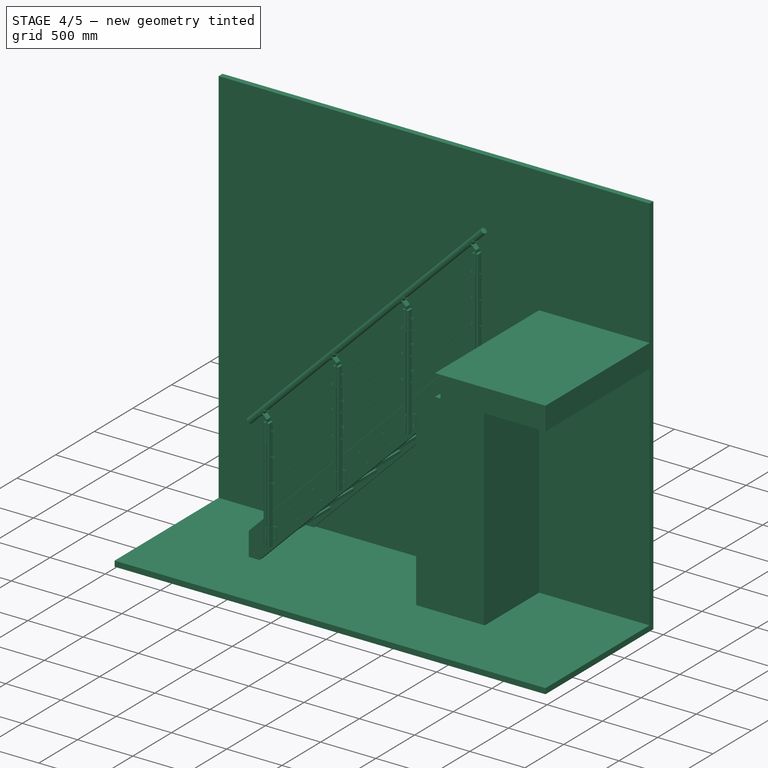
[diagram: stage 4 of 5 — iso view after this stage's code; geometry added in this stage tinted green]
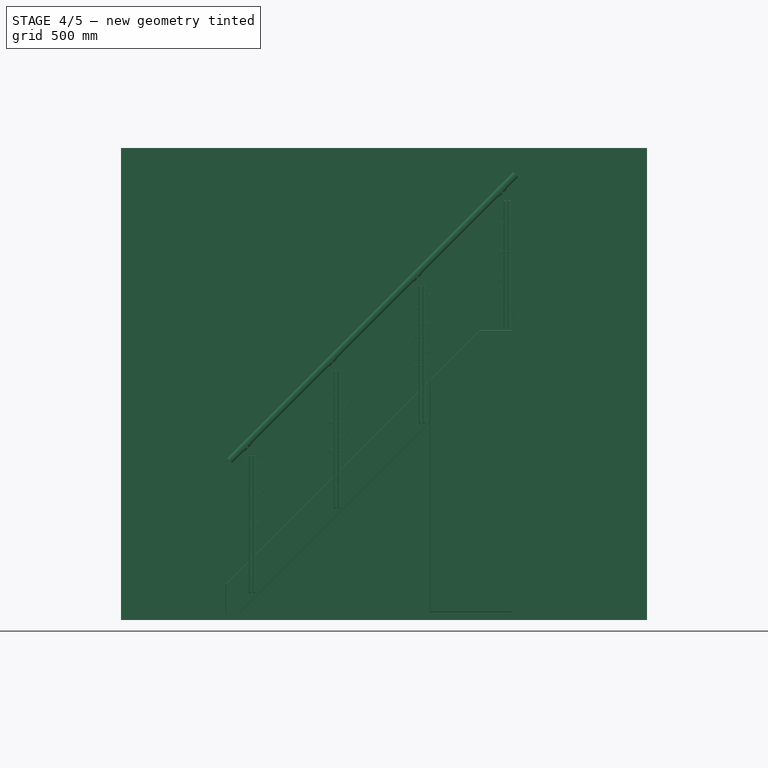
[diagram: stage 4 of 5 — front view after this stage's code; geometry added in this stage tinted green]
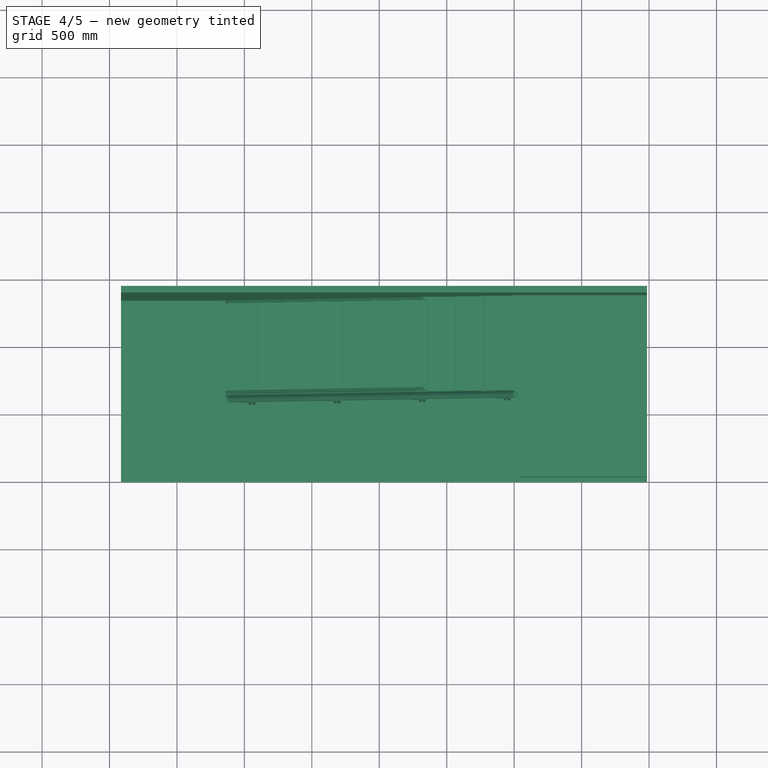
[diagram: stage 4 of 5 — top view after this stage's code; geometry added in this stage tinted green]
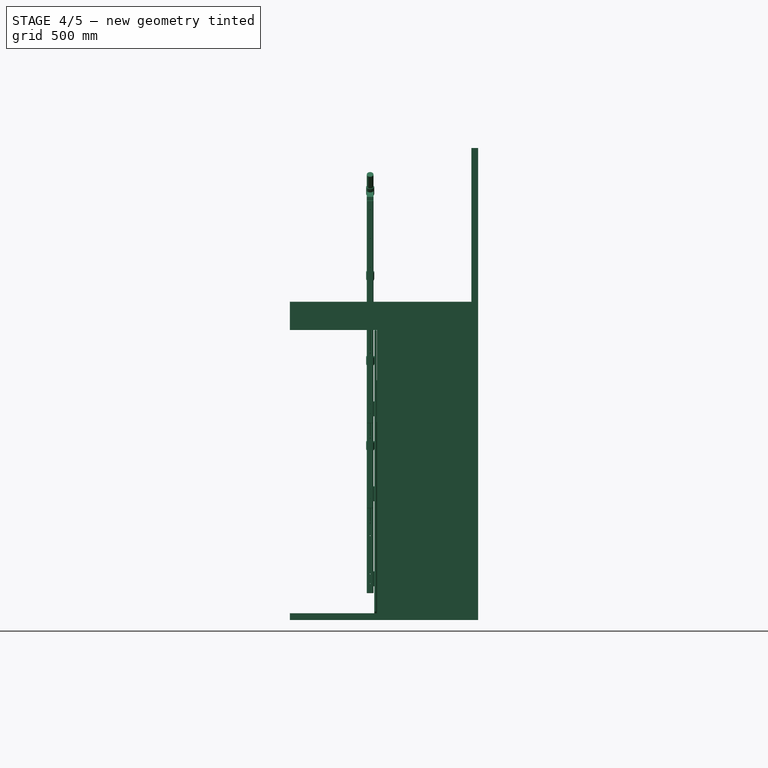
[diagram: stage 4 of 5 — right view after this stage's code; geometry added in this stage tinted green]
FEATURE [Part::Mirroring] mirror002  label="beam_wall"
  Base = (0,0,0)
  Normal = (0,1,0)
  Source = -> Chamfer004
FEATURE [Part::FeaturePython] beam_plate_01  # a2plus imported part (geometry in sourceFile) (typed FeaturePython)
  Placement = pos=(1375,-354,1516) rot=(0,0,1;1.5708rad)
  fixedPosition = false
  sourceFile = beam_plate.fcstd
  timeLastImport = 1.49253e+09
  updateColors = true
FEATURE [Part::Box] Box  label="Floor"
  AttacherType = Attacher::AttachEngine3D
  Height = 50
  Length = 3900
  Placement = pos=(-915,-1000,-50) rot=(0,0,1;0rad)
  Width = 1345
FEATURE [Part::Part2DObjectPython] DWire  # Draft 2D object (typed FeaturePython)
  ChamferSize = 0
  Closed = true
  End = (1400.47,325,1742.01)
  FilletRadius = 0
  Length = 337.883
  MakeFace = true
  Points = (6) [(1400.47,325,1655),(1355,325,1655),(1355,325,1680),(1318.54,325,1680),(1318.54,325,1742.01),(1400.47,325,1742.01)]
  Start = (1400.47,325,1655)
  Subdivisions = 0
  Support = -> [mirror002]
FEATURE [Part::Extrusion] Extrude005
  Base = -> DWire
  Dir = (0,1,0)
  DirMode = 0
  FaceMakerClass = Part::FaceMakerBullseye
  LengthFwd = 25
  LengthRev = 0
  Solid = false
  Symmetric = false
FEATURE [Part::Cut] Cut002
  Base = -> mirror002
  Tool = -> Extrude005
FEATURE [Part::Cut] Cut003  label="wall_beam"
  Base = -> Cut002
  Tool = -> Array002
FEATURE [Part::Box] Box003  label="Wall"
  AttacherType = Attacher::AttachEngine3D
  Height = 3500
  Length = 3900
  Placement = pos=(-915,345,-50) rot=(0,0,1;0rad)
  Width = 50
FEATURE [PartDesign::ShapeBinder] ReferenceBox002
  Placement = pos=(1985,-1000,2100) rot=(0,0,1;0rad)
  Support = -> [Box002]
FEATURE [Sketcher::SketchObject] Sketch
  ExternalGeometry = -> [ReferenceBox002]
  MapMode = 5
  Placement = pos=(1985,-1000,2100) rot=(1,0,0;1.5708rad)
  Support = -> [ReferenceBox002]
  sketch-geometry (5):
    g0: LineSegment StartX=0 StartY=15 StartZ=0 EndX=50 EndY=15 EndZ=0
    g1: LineSegment StartX=50 StartY=15 StartZ=0 EndX=50 EndY=195 EndZ=0
    g2: LineSegment StartX=50 StartY=195 StartZ=0 EndX=0 EndY=195 EndZ=0
    g3: LineSegment StartX=0 StartY=195 StartZ=0 EndX=0 EndY=15 EndZ=0
    g4: LineSegment [constr] StartX=0 StartY=105 StartZ=0 EndX=125 EndY=105 EndZ=0
  constraints (15):
    c: Coincident(g0,g1)
    c: Coincident(g1,g2)
    c: Coincident(g2,g3)
    c: Coincident(g3,g0)
    c: Horizontal(g0)
    c: Horizontal(g2)
    c: Vertical(g1)
    c: Vertical(g3)
    c: PointOnObject(g4,g-4)
    c: Horizontal(g4)
    c: Symmetric(g-1,g-4,g4)
    c: Symmetric(g2,g0,g4)
    c: DistanceX(g2,g2) = 50
    c: DistanceX(g4,g4) = 125
    c: DistanceY(g-1,g0) = 15
FEATURE [PartDesign::Pocket] Pocket
  BaseFeature = -> Box002
  Length = 5
  Placement = pos=(1985,-1000,2100) rot=(0,0,1;0rad)
  Profile = -> Sketch
  Type = 1
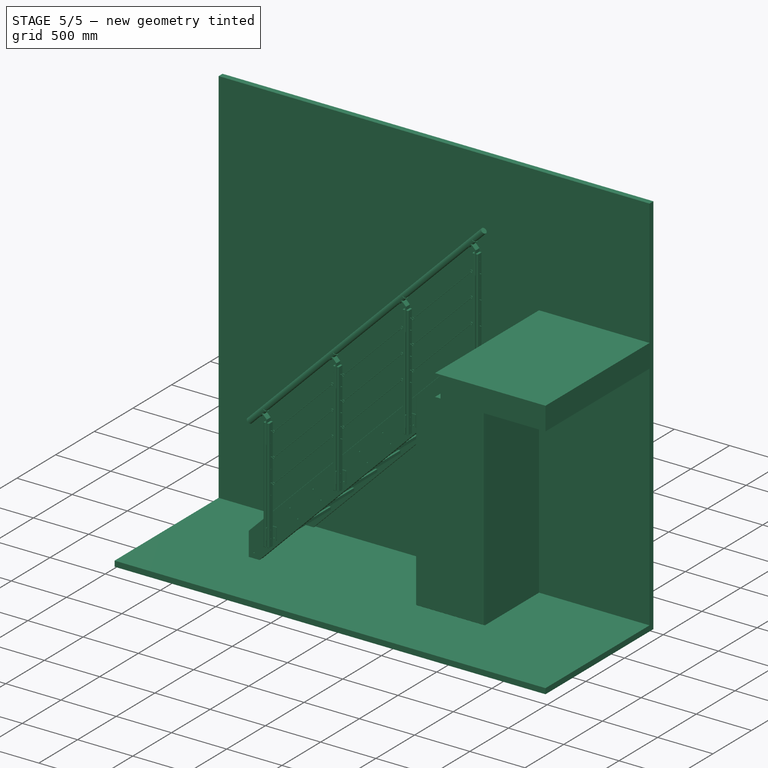
[diagram: stage 5 of 5 — iso view after this stage's code; geometry added in this stage tinted green]
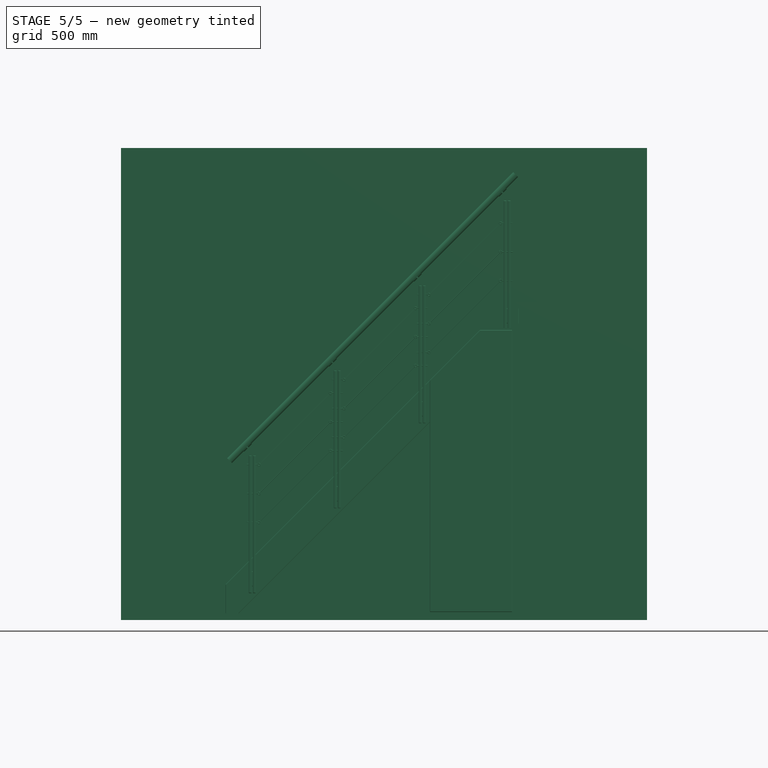
[diagram: stage 5 of 5 — front view after this stage's code; geometry added in this stage tinted green]
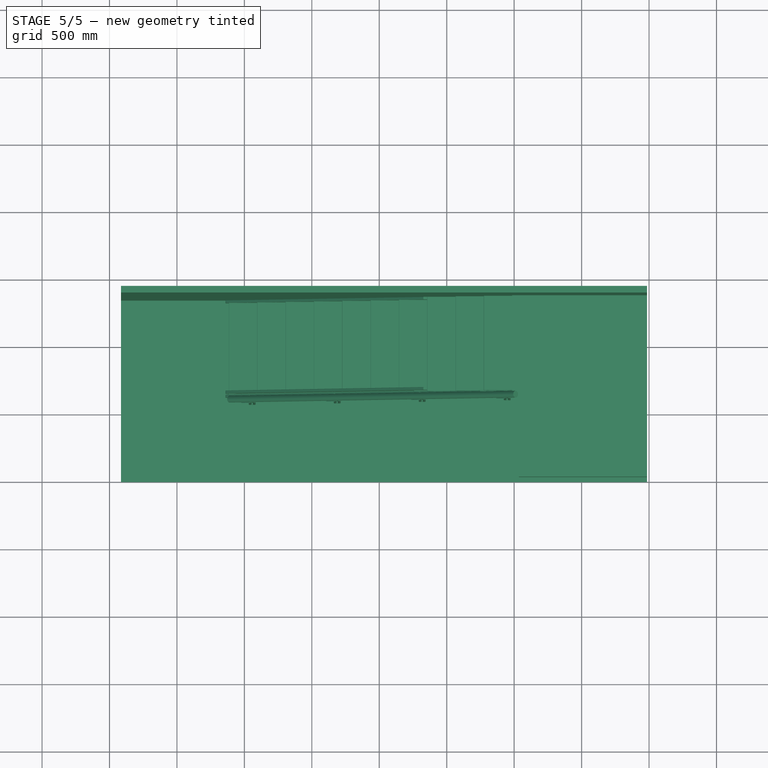
[diagram: stage 5 of 5 — top view after this stage's code; geometry added in this stage tinted green]
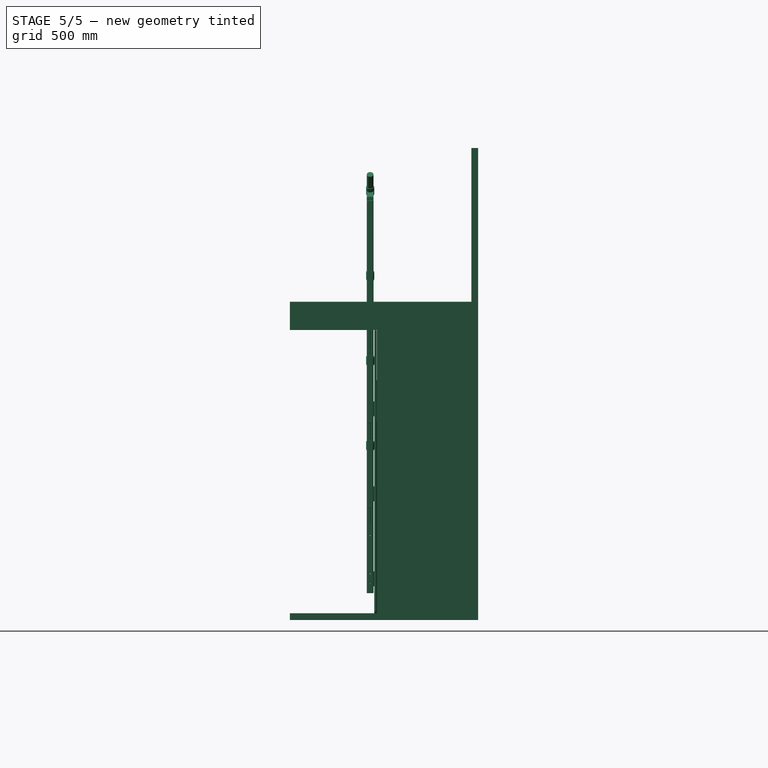
[diagram: stage 5 of 5 — right view after this stage's code; geometry added in this stage tinted green]
FEATURE [Part::FeaturePython] step_002  # a2plus imported part (geometry in sourceFile) (typed FeaturePython)
  Placement = pos=(0,0,0) rot=(1,0,0;1.5708rad)
  fixedPosition = true
  sourceFile = step.fcstd
  timeLastImport = 1.49207e+09
  updateColors = true
FEATURE [Part::Chamfer] Chamfer002  label="step_chm001"
  Base = -> step_002
  Edges = 2 edges r=2: [Edge1,Edge8]
FEATURE [Part::FeaturePython] plate_002  # a2plus imported part (geometry in sourceFile) (typed FeaturePython)
  Placement = pos=(3.1e-11,-325,-12.5) rot=(0.57735,-0.57735,-0.57735;2.0944rad)
  fixedPosition = false
  sourceFile = plate.fcstd
  timeLastImport = 1.49216e+09
  updateColors = true
FEATURE [Part::Mirroring] mirror001  label="Mirror of plate_002"
  Base = (-105,0,12.5)
  Normal = (0,-1,0)
  Source = -> plate_002
FEATURE [Part::Compound] Compound  label="step_group"
  Links = -> [Chamfer002,mirror001,plate_002]
FEATURE [Part::FeaturePython] Array  label="Step_array"  # Draft array (typed FeaturePython)
  Angle = 360
  ArrayType = 0
  Axis = (0,0,1)
  Base = -> Compound
  Center = (0,0,0)
  Fuse = false
  IntervalAxis = (0,0,0)
  IntervalX = (210,0,210)
  IntervalY = (0,1,0)
  IntervalZ = (0,0,0)
  NumberPolar = 1
  NumberX = 7
  NumberY = 1
  NumberZ = 1
  Placement = pos=(0,0,197.5) rot=(0,0,1;0rad)
FEATURE [Part::FeaturePython] railing_element_01  # a2plus imported part (geometry in sourceFile) (typed FeaturePython)
  Placement = pos=(1318.5,-405,1430) rot=(0,0,1;0rad)
  fixedPosition = false
  sourceFile = railing_element.fcstd
  timeLastImport = 1.49258e+09
  updateColors = true
FEATURE [Part::FeaturePython] Array001  label="Railing_array"  # Draft array (typed FeaturePython)
  Angle = 360
  ArrayType = 0
  Axis = (0,0,1)
  Base = -> railing_element_01
  Center = (0,0,0)
  Fuse = false
  IntervalAxis = (0,0,0)
  IntervalX = (-630,0,-630)
  IntervalY = (0,1,0)
  IntervalZ = (0,0,0)
  NumberPolar = 1
  NumberX = 2
  NumberY = 1
  NumberZ = 1
  Placement = pos=(0,0,4.1e-11) rot=(0,0,1;0rad)
  expr: IntervalX.z = Array001.IntervalX[0]
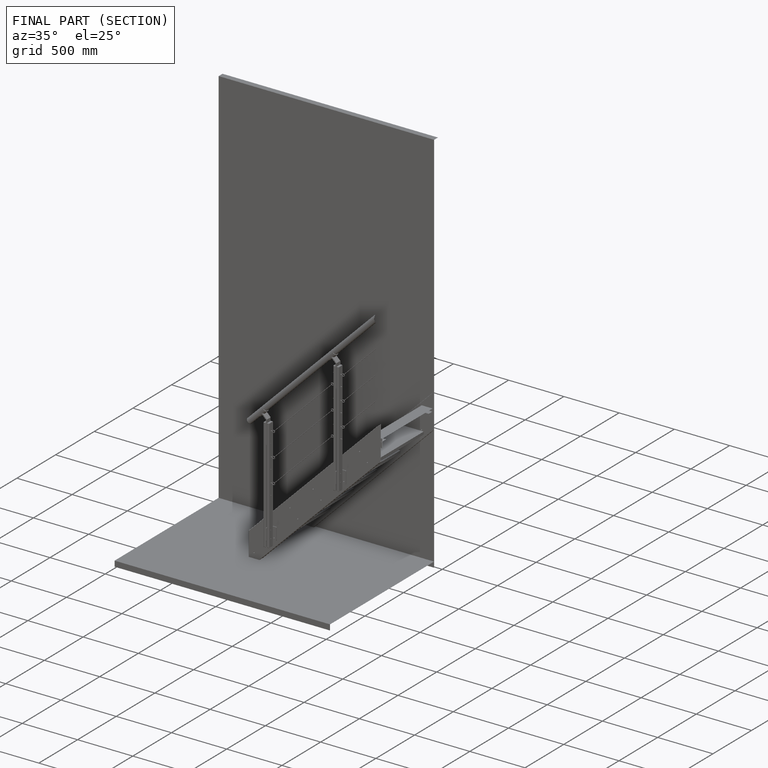
[diagram: finished part — half-section view (interior)]
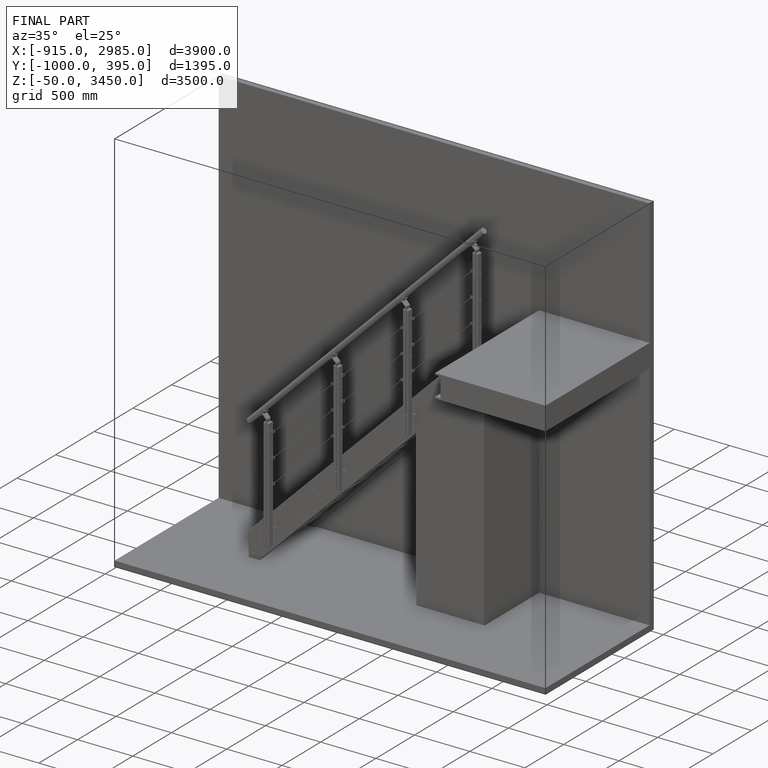
[diagram: finished part — iso view with bounding-box wireframe]
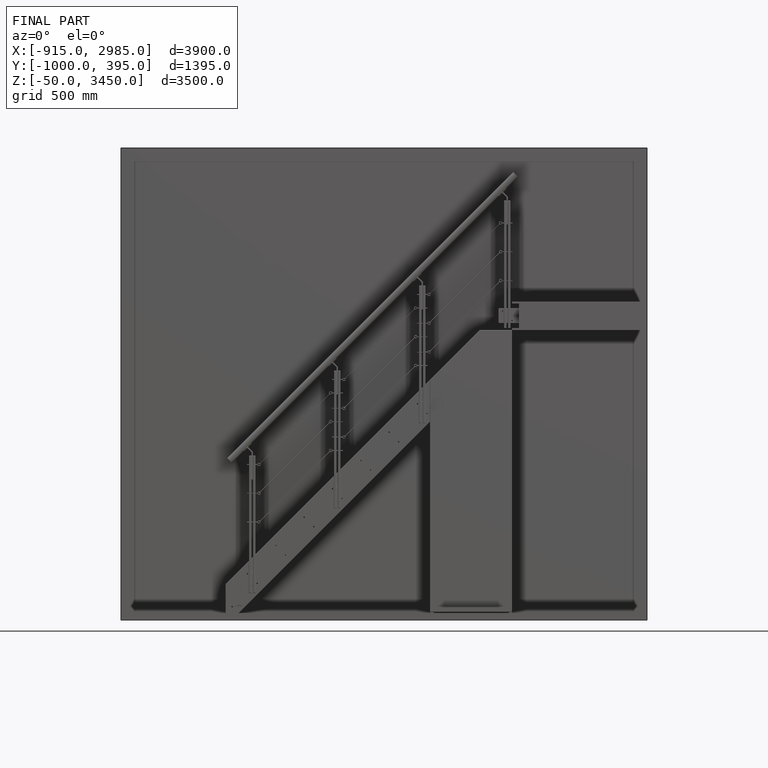
[diagram: finished part — front view with bounding-box wireframe]
